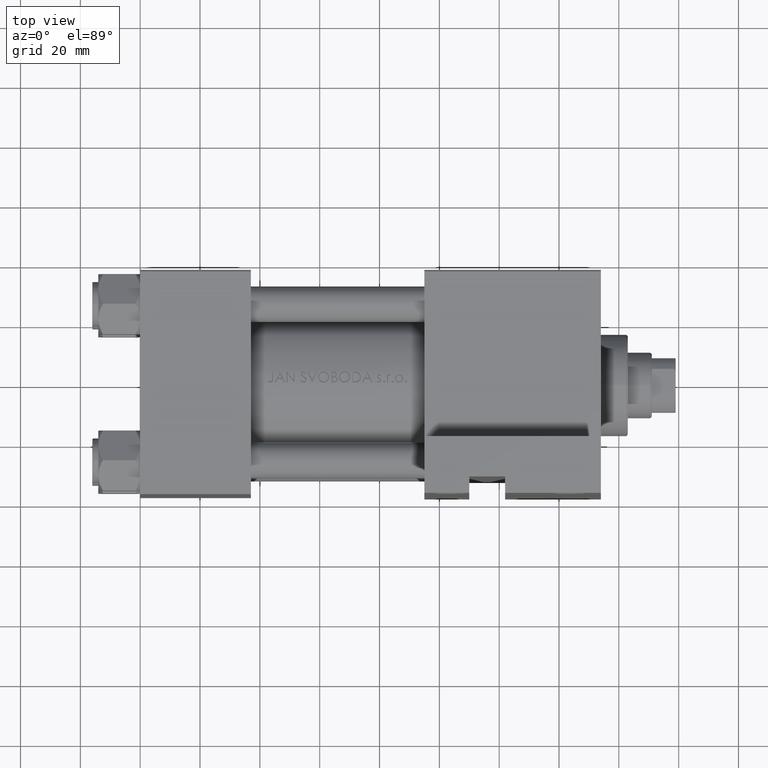
[diagram: clean part render]
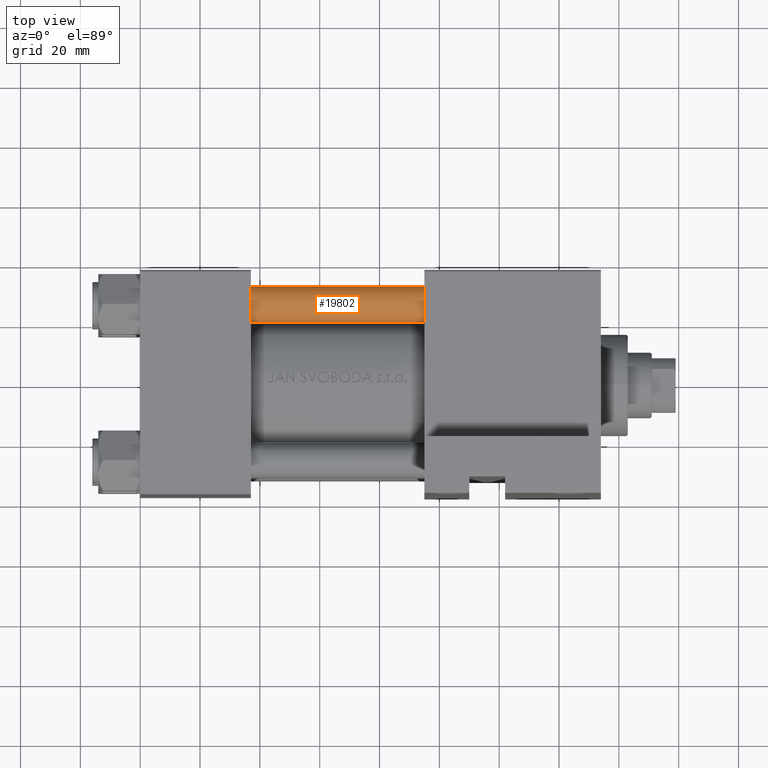
[diagram: same view with one face highlighted and labeled with its STEP entity id]
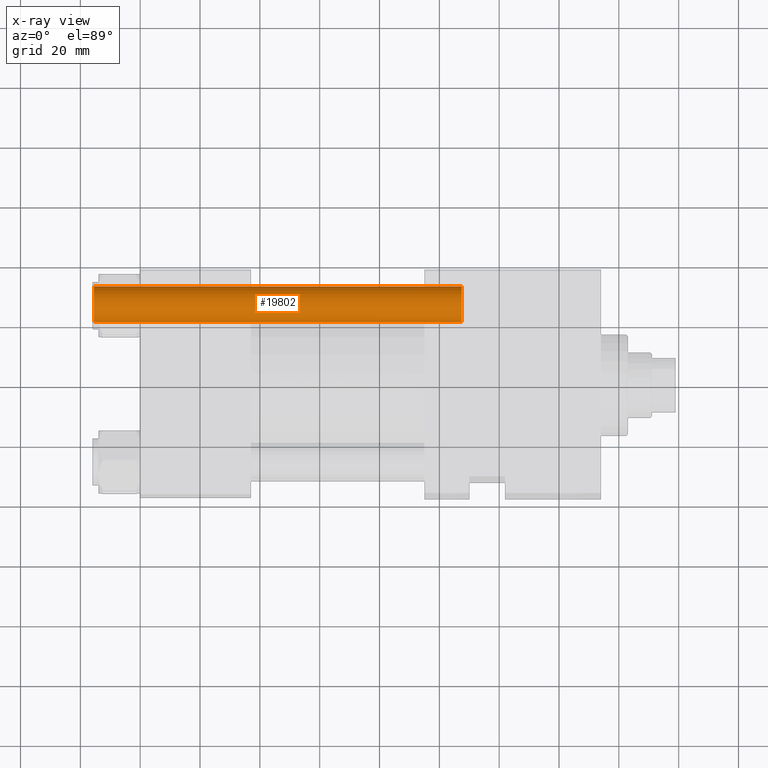
[diagram: x-ray of the same camera — body ghosted, the highlighted face saturated]
A machine part, top view. The second image highlights one B-rep face of the part: STEP entity #19802.
The next image is the same camera in x-ray: the body ghosted, the highlighted face saturated — about 0% of this face is hidden behind the body in this view.
In plain terms, the highlighted cylindrical surface (edge-blend (fillet) strip) has radius 6 mm, axis along (1, -0, 0).
Its self-contained STEP definition (entity closure, byte-faithful):
#248 = VERTEX_POINT ( 'NONE', #709 ) ;
#455 = DIRECTION ( 'NONE',  ( -0.000000000000000000, -0.000000000000000000, -1.000000000000000000 ) ) ;
#526 = CARTESIAN_POINT ( 'NONE',  ( -6.000000000000000888, 0.000000000000000000, 0.4999999999999865663 ) ) ;
#709 = CARTESIAN_POINT ( 'NONE',  ( -6.000000000000000888, 0.000000000000000000, 123.5000000000000426 ) ) ;
#1282 = DIRECTION ( 'NONE',  ( 1.000000000000000000, 0.000000000000000000, 0.000000000000000000 ) ) ;
#2102 = AXIS2_PLACEMENT_3D ( 'NONE', #14195, #17804, #32972 ) ;
#3374 = DIRECTION ( 'NONE',  ( -1.000000000000000000, 0.000000000000000000, 0.000000000000000000 ) ) ;
#3618 = VECTOR ( 'NONE', #27037, 1000.000000000000000 ) ;
#9462 = DIRECTION ( 'NONE',  ( 0.000000000000000000, 0.000000000000000000, -1.000000000000000000 ) ) ;
#11307 = VERTEX_POINT ( 'NONE', #526 ) ;
#13209 = VERTEX_POINT ( 'NONE', #16134 ) ;
#13705 = CIRCLE ( 'NONE', #15981, 6.000000000000000888 ) ;
#14195 = CARTESIAN_POINT ( 'NONE',  ( 0.000000000000000000, 0.000000000000000000, 0.4999999999999865663 ) ) ;
#14454 = VERTEX_POINT ( 'NONE', #43538 ) ;
#15981 = AXIS2_PLACEMENT_3D ( 'NONE', #37907, #9462, #1282 ) ;
#16134 = CARTESIAN_POINT ( 'NONE',  ( 6.000000000000000888, 7.347880794884120722E-16, 123.5000000000000426 ) ) ;
#17804 = DIRECTION ( 'NONE',  ( -0.000000000000000000, -0.000000000000000000, 1.000000000000000000 ) ) ;
#18781 = EDGE_CURVE ( 'NONE', #13209, #14454, #23437, .T. ) ;
#19802 = ADVANCED_FACE ( 'NONE', ( #25052 ), #21678, .T. ) ;
#21199 = ORIENTED_EDGE ( 'NONE', *, *, #21404, .T. ) ;
#21404 = EDGE_CURVE ( 'NONE', #248, #11307, #40444, .T. ) ;
#21678 = CYLINDRICAL_SURFACE ( 'NONE', #42878, 6.000000000000000888 ) ;
#23437 = LINE ( 'NONE', #38139, #3618 ) ;
#24043 = EDGE_CURVE ( 'NONE', #11307, #14454, #27472, .T. ) ;
#25052 = FACE_OUTER_BOUND ( 'NONE', #37036, .T. ) ;
#25523 = EDGE_CURVE ( 'NONE', #13209, #248, #13705, .T. ) ;
#27037 = DIRECTION ( 'NONE',  ( -0.000000000000000000, -0.000000000000000000, -1.000000000000000000 ) ) ;
#27472 = CIRCLE ( 'NONE', #2102, 6.000000000000000888 ) ;
#28965 = ORIENTED_EDGE ( 'NONE', *, *, #18781, .F. ) ;
#32972 = DIRECTION ( 'NONE',  ( 1.000000000000000000, 0.000000000000000000, 0.000000000000000000 ) ) ;
#32973 = CARTESIAN_POINT ( 'NONE',  ( -6.000000000000000888, 0.000000000000000000, 124.0000000000000000 ) ) ;
#36244 = ORIENTED_EDGE ( 'NONE', *, *, #25523, .T. ) ;
#36391 = CARTESIAN_POINT ( 'NONE',  ( 0.000000000000000000, 0.000000000000000000, 124.0000000000000000 ) ) ;
#36863 = DIRECTION ( 'NONE',  ( -0.000000000000000000, -0.000000000000000000, -1.000000000000000000 ) ) ;
#37036 = EDGE_LOOP ( 'NONE', ( #28965, #36244, #21199, #40880 ) ) ;
#37907 = CARTESIAN_POINT ( 'NONE',  ( 0.000000000000000000, 0.000000000000000000, 123.5000000000000426 ) ) ;
#38139 = CARTESIAN_POINT ( 'NONE',  ( 6.000000000000000888, 7.347880794884120722E-16, 124.0000000000000000 ) ) ;
#40444 = LINE ( 'NONE', #32973, #47540 ) ;
#40880 = ORIENTED_EDGE ( 'NONE', *, *, #24043, .T. ) ;
#42878 = AXIS2_PLACEMENT_3D ( 'NONE', #36391, #36863, #3374 ) ;
#43538 = CARTESIAN_POINT ( 'NONE',  ( 6.000000000000000888, 7.347880794884120722E-16, 0.4999999999999865663 ) ) ;
#47540 = VECTOR ( 'NONE', #455, 1000.000000000000000 ) ;